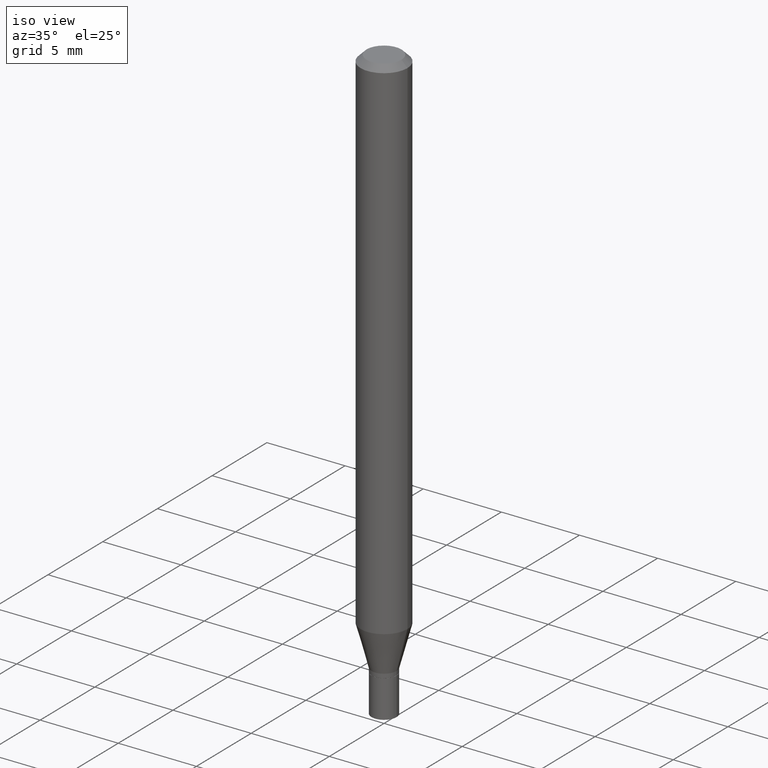
[diagram: clean part render]
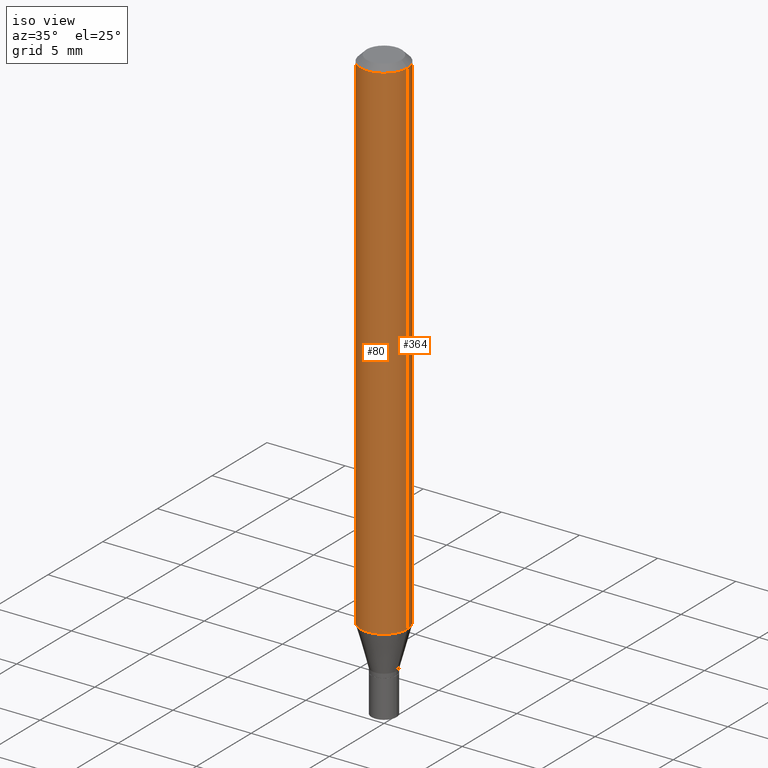
[diagram: same view with one multi-face feature highlighted, each face labeled with its STEP entity id]
A machine part, iso view. The highlighted faces form ONE feature: a constant-radius fillet chain: 2 tangent blend faces with common blend radius 1.4999 mm. The faces share edges in the B-rep.
Their STEP definitions:
[1] entity #364 (Cylinder):
#3 = CYLINDRICAL_SURFACE ( 'NONE', #389, 0.05904999999999999832 ) ;
#27 = CARTESIAN_POINT ( 'NONE',  ( -0.05904999999999999832, -4.092053854800706123E-15, -1.292182000251478113 ) ) ;
#34 = AXIS2_PLACEMENT_3D ( 'NONE', #309, #171, #448 ) ;
#47 = DIRECTION ( 'NONE',  ( -2.445468806185136597E-29, 3.491481338843145583E-15, 1.000000000000000000 ) ) ;
#49 = VERTEX_POINT ( 'NONE', #27 ) ;
#69 = VECTOR ( 'NONE', #187, 39.37007874015748143 ) ;
#79 = VERTEX_POINT ( 'NONE', #280 ) ;
#112 = EDGE_CURVE ( 'NONE', #49, #79, #134, .T. ) ;
#134 = LINE ( 'NONE', #451, #69 ) ;
#135 = LINE ( 'NONE', #182, #405 ) ;
#171 = DIRECTION ( 'NONE',  ( -2.445468806185136597E-29, 3.491481338843145583E-15, 1.000000000000000000 ) ) ;
#176 = AXIS2_PLACEMENT_3D ( 'NONE', #229, #47, #193 ) ;
#182 = CARTESIAN_POINT ( 'NONE',  ( 0.05904999999999999832, -4.123439461173740327E-16, 2.879382386107500220E-30 ) ) ;
#187 = DIRECTION ( 'NONE',  ( -2.445468806185136877E-29, 3.491481338843145188E-15, 1.000000000000000000 ) ) ;
#193 = DIRECTION ( 'NONE',  ( 1.000000000000000000, -6.982962677686266711E-15, 0.000000000000000000 ) ) ;
#200 = VERTEX_POINT ( 'NONE', #265 ) ;
#203 = ORIENTED_EDGE ( 'NONE', *, *, #314, .T. ) ;
#229 = CARTESIAN_POINT ( 'NONE',  ( 3.668203209277705088E-31, -5.237222008264718399E-17, -0.01499999999999999944 ) ) ;
#232 = ORIENTED_EDGE ( 'NONE', *, *, #112, .T. ) ;
#248 = CIRCLE ( 'NONE', #176, 0.05904999999999999832 ) ;
#251 = CARTESIAN_POINT ( 'NONE',  ( 0.05904999999999999832, -4.647161662000212105E-16, -0.01499999999999999944 ) ) ;
#265 = CARTESIAN_POINT ( 'NONE',  ( 0.05904999999999999832, -4.923973286384418959E-15, -1.292182000251478113 ) ) ;
#280 = CARTESIAN_POINT ( 'NONE',  ( -0.05904999999999999832, -1.862425294708507052E-15, -0.01499999999999999944 ) ) ;
#307 = DIRECTION ( 'NONE',  ( -2.445468806185136597E-29, 3.491481338843145583E-15, 1.000000000000000000 ) ) ;
#309 = CARTESIAN_POINT ( 'NONE',  ( 3.159990773528904533E-29, -4.511629340267044828E-15, -1.292182000251478113 ) ) ;
#314 = EDGE_CURVE ( 'NONE', #200, #49, #430, .T. ) ;
#333 = FACE_OUTER_BOUND ( 'NONE', #334, .T. ) ;
#334 = EDGE_LOOP ( 'NONE', ( #203, #232, #372, #338 ) ) ;
#335 = DIRECTION ( 'NONE',  ( 1.000000000000000000, -6.982962677686266711E-15, 4.876176775795936353E-29 ) ) ;
#338 = ORIENTED_EDGE ( 'NONE', *, *, #442, .F. ) ;
#359 = EDGE_CURVE ( 'NONE', #416, #79, #248, .T. ) ;
#364 = ADVANCED_FACE ( 'NONE', ( #333 ), #3, .T. ) ;
#372 = ORIENTED_EDGE ( 'NONE', *, *, #359, .F. ) ;
#389 = AXIS2_PLACEMENT_3D ( 'NONE', #399, #307, #335 ) ;
#399 = CARTESIAN_POINT ( 'NONE',  ( 0.000000000000000000, 0.000000000000000000, 0.000000000000000000 ) ) ;
#405 = VECTOR ( 'NONE', #424, 39.37007874015748143 ) ;
#416 = VERTEX_POINT ( 'NONE', #251 ) ;
#424 = DIRECTION ( 'NONE',  ( -2.445468806185136877E-29, 3.491481338843145188E-15, 1.000000000000000000 ) ) ;
#430 = CIRCLE ( 'NONE', #34, 0.05904999999999999832 ) ;
#442 = EDGE_CURVE ( 'NONE', #200, #416, #135, .T. ) ;
#448 = DIRECTION ( 'NONE',  ( 1.000000000000000000, -6.982962677686273021E-15, 0.000000000000000000 ) ) ;
#451 = CARTESIAN_POINT ( 'NONE',  ( -0.05904999999999999832, 4.195754854663391478E-16, -2.904631170795521892E-30 ) ) ;
[2] entity #80 (Cylinder):
#8 = ORIENTED_EDGE ( 'NONE', *, *, #326, .F. ) ;
#27 = CARTESIAN_POINT ( 'NONE',  ( -0.05904999999999999832, -4.092053854800706123E-15, -1.292182000251478113 ) ) ;
#41 = CIRCLE ( 'NONE', #205, 0.05904999999999999832 ) ;
#49 = VERTEX_POINT ( 'NONE', #27 ) ;
#69 = VECTOR ( 'NONE', #187, 39.37007874015748143 ) ;
#79 = VERTEX_POINT ( 'NONE', #280 ) ;
#80 = ADVANCED_FACE ( 'NONE', ( #453 ), #129, .T. ) ;
#86 = CARTESIAN_POINT ( 'NONE',  ( 3.668203209277705088E-31, -5.237222008264718399E-17, -0.01499999999999999944 ) ) ;
#112 = EDGE_CURVE ( 'NONE', #49, #79, #134, .T. ) ;
#123 = CARTESIAN_POINT ( 'NONE',  ( 3.159990773528904533E-29, -4.511629340267044828E-15, -1.292182000251478113 ) ) ;
#129 = CYLINDRICAL_SURFACE ( 'NONE', #138, 0.05904999999999999832 ) ;
#134 = LINE ( 'NONE', #451, #69 ) ;
#135 = LINE ( 'NONE', #182, #405 ) ;
#138 = AXIS2_PLACEMENT_3D ( 'NONE', #383, #252, #213 ) ;
#158 = DIRECTION ( 'NONE',  ( -2.445468806185136597E-29, 3.491481338843145583E-15, 1.000000000000000000 ) ) ;
#182 = CARTESIAN_POINT ( 'NONE',  ( 0.05904999999999999832, -4.123439461173740327E-16, 2.879382386107500220E-30 ) ) ;
#187 = DIRECTION ( 'NONE',  ( -2.445468806185136877E-29, 3.491481338843145188E-15, 1.000000000000000000 ) ) ;
#200 = VERTEX_POINT ( 'NONE', #265 ) ;
#205 = AXIS2_PLACEMENT_3D ( 'NONE', #86, #158, #312 ) ;
#206 = ORIENTED_EDGE ( 'NONE', *, *, #112, .F. ) ;
#213 = DIRECTION ( 'NONE',  ( 1.000000000000000000, -6.982962677686266711E-15, 4.876176775795936353E-29 ) ) ;
#217 = CIRCLE ( 'NONE', #318, 0.05904999999999999832 ) ;
#251 = CARTESIAN_POINT ( 'NONE',  ( 0.05904999999999999832, -4.647161662000212105E-16, -0.01499999999999999944 ) ) ;
#252 = DIRECTION ( 'NONE',  ( -2.445468806185136597E-29, 3.491481338843145583E-15, 1.000000000000000000 ) ) ;
#265 = CARTESIAN_POINT ( 'NONE',  ( 0.05904999999999999832, -4.923973286384418959E-15, -1.292182000251478113 ) ) ;
#271 = DIRECTION ( 'NONE',  ( 1.000000000000000000, -6.982962677686273021E-15, 0.000000000000000000 ) ) ;
#275 = ORIENTED_EDGE ( 'NONE', *, *, #442, .T. ) ;
#280 = CARTESIAN_POINT ( 'NONE',  ( -0.05904999999999999832, -1.862425294708507052E-15, -0.01499999999999999944 ) ) ;
#312 = DIRECTION ( 'NONE',  ( 1.000000000000000000, -6.982962677686266711E-15, 0.000000000000000000 ) ) ;
#317 = EDGE_CURVE ( 'NONE', #49, #200, #217, .T. ) ;
#318 = AXIS2_PLACEMENT_3D ( 'NONE', #123, #348, #271 ) ;
#326 = EDGE_CURVE ( 'NONE', #79, #416, #41, .T. ) ;
#348 = DIRECTION ( 'NONE',  ( -2.445468806185136597E-29, 3.491481338843145583E-15, 1.000000000000000000 ) ) ;
#383 = CARTESIAN_POINT ( 'NONE',  ( 0.000000000000000000, 0.000000000000000000, 0.000000000000000000 ) ) ;
#405 = VECTOR ( 'NONE', #424, 39.37007874015748143 ) ;
#416 = VERTEX_POINT ( 'NONE', #251 ) ;
#424 = DIRECTION ( 'NONE',  ( -2.445468806185136877E-29, 3.491481338843145188E-15, 1.000000000000000000 ) ) ;
#438 = ORIENTED_EDGE ( 'NONE', *, *, #317, .T. ) ;
#442 = EDGE_CURVE ( 'NONE', #200, #416, #135, .T. ) ;
#450 = EDGE_LOOP ( 'NONE', ( #206, #438, #275, #8 ) ) ;
#451 = CARTESIAN_POINT ( 'NONE',  ( -0.05904999999999999832, 4.195754854663391478E-16, -2.904631170795521892E-30 ) ) ;
#453 = FACE_OUTER_BOUND ( 'NONE', #450, .T. ) ;